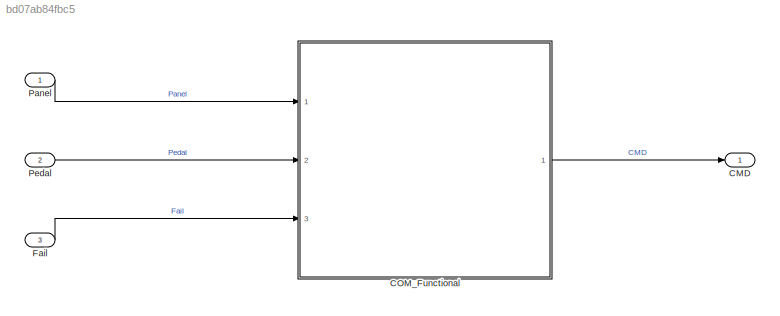
MODEL slx_bd07ab84fbc5
KIND model
CONFIG AbsTol = auto
CONFIG FixedStep = auto
CONFIG MaxStep = auto
CONFIG MinStep = auto
CONFIG RelTol = 1e-3
CONFIG SampleTimeConstraint = Unconstrained
CONFIG Solver = FixedStepDiscrete
CONFIG SolverMode = Auto
CONFIG SolverName = FixedStepDiscrete
CONFIG StartTime = 0.0
CONFIG StopTime = 10.0
BLOCK [Outport] CMD
  IconDisplay = Port number
  OutDataTypeStr = int32
BLOCK [ModelReference] COM_Functional
  ModelNameDialog = COM_Functional_sl.slx
  ModelReferenceVersion = 1.2
  Ports = [3, 1]
  Variant = off
BLOCK [Inport] Fail
  IconDisplay = Port number
  Interpolate = off
  OutDataTypeStr = boolean
  Port = 3
  SampleTime = dt
BLOCK [Inport] Panel
  BusOutputAsStruct = on
  IconDisplay = Port number
  Interpolate = off
  OutDataTypeStr = Bus: PanelMsgImpl
  SampleTime = dt
BLOCK [Inport] Pedal
  IconDisplay = Port number
  Interpolate = off
  OutDataTypeStr = int32
  Port = 2
  SampleTime = dt
LINE COM_Functional:1 -> CMD:1
LINE Fail:1 -> COM_Functional:3
LINE Panel:1 -> COM_Functional:1
LINE Pedal:1 -> COM_Functional:2
